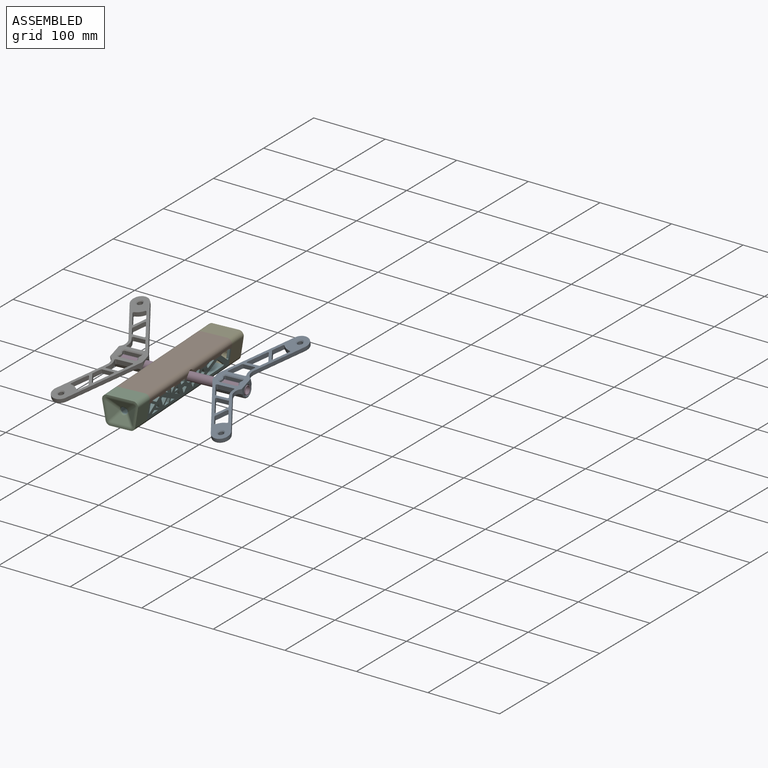
[diagram: assembled view]
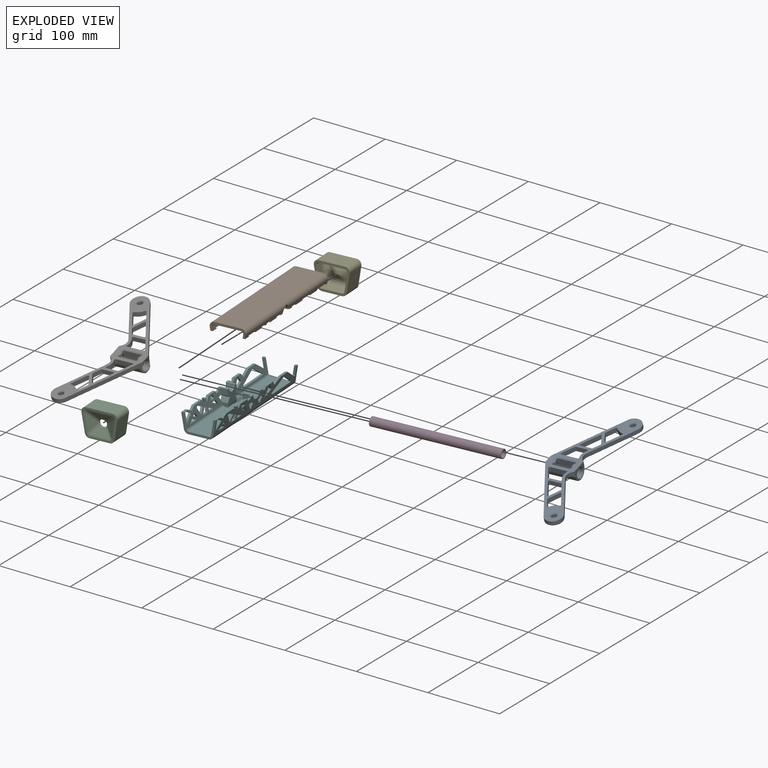
[diagram: exploded view]
GUIDED TOUR — MATED ASSEMBLY (Onshape document f128013b0bb9488676494e75, AutoMate assembly f128013b0bb9488676494e75_38c67e1a10a364d6b3b37d11_ba5783b4f25d2360176f25b1_default)

This assembly has 7 components, labeled P0..P6 below (a component is one placed occurrence of a part; the same part can appear more than once), held together by 8 mates. A mate is a constraint between two components; its type names the relative motion it leaves free:
  CYLINDRICAL — leaves both rotation about and translation along the listed axis free,
  FASTENED — locks the two components together rigidly (no relative motion),
  PLANAR — leaves sliding in the plane through the listed point (normal = the listed direction) and rotation about that normal free.
Axis/direction vectors are unit vectors and 'through' points are millimeter coordinates, both in the assembly's world frame.

MATES
  1. CYLINDRICAL "Cylindrical 1": P3 <-> P5, axis (-0.998, -0.053, -0.014) through (12.97, -10.44, 122.37) mm
  2. PLANAR "Planar 2": P1 <-> P2, direction (0.053, -0.999, 0.000) through (27.02, -98.71, 127.86) mm
  3. PLANAR "Planar 1": P2 <-> P5, direction (-0.053, 0.999, 0.000) through (23.84, -98.88, 131.51) mm
  4. FASTENED "Fastened 3": P6 <-> P3, direction (-0.998, -0.053, -0.014) through (-75.80, -15.17, 121.11) mm
  5. FASTENED "Fastened 2": P1 <-> P2, direction (0.053, -0.999, 0.000) through (23.79, -98.88, 134.69) mm
  6. FASTENED "Fastened 1": P2 <-> P5, direction (-0.053, 0.999, 0.000) through (-11.92, -100.79, 131.00) mm
  7. FASTENED "Fastened 4": P4 <-> P5, direction (0.053, -0.999, 0.000) through (-21.43, 76.76, 134.11) mm
  8. FASTENED "Fastened 5": P0 <-> P3, direction (0.998, 0.053, 0.014) through (101.73, -5.70, 123.64) mm

ASSEMBLY ORDER
  1. P6 — the base component [order verified]
  2. P5 [order verified]
  3. P3 [order verified]
  4. P0 [order verified]
  5. P1 [order verified]
  6. P2 [order verified]
  7. P4 [order verified]
Order-tag legend:
  [order verified] — this step's position reverses a verified removal order: the component was checked to insert without passing through the ones already placed.

Of the 7 components, 0 carry the full construction recipe — the FeatureScript program that regenerates the part's solid from scratch; the rest are supplied as boundary geometry only.
Each toured component is shown spotlighted twice — in the assembled view, then in the exploded view, where a leader line traces a displaced component back to its assembled socket (saturated green if recipe-attached, orange if geometry-only; every other component desaturated gray) — followed by its recipe or geometry summary and the mates that hold it.
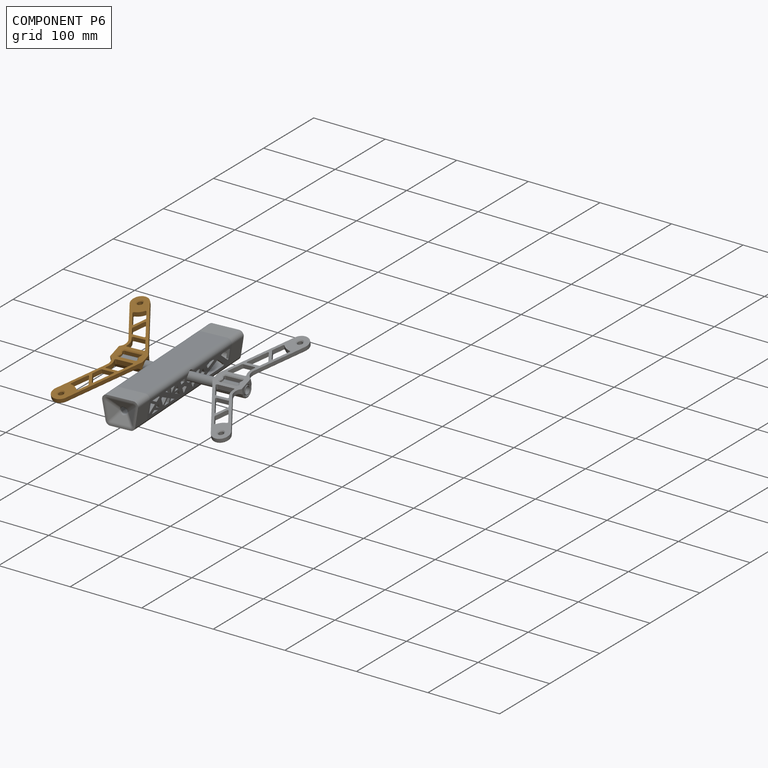
[diagram: component P6 — assembled]
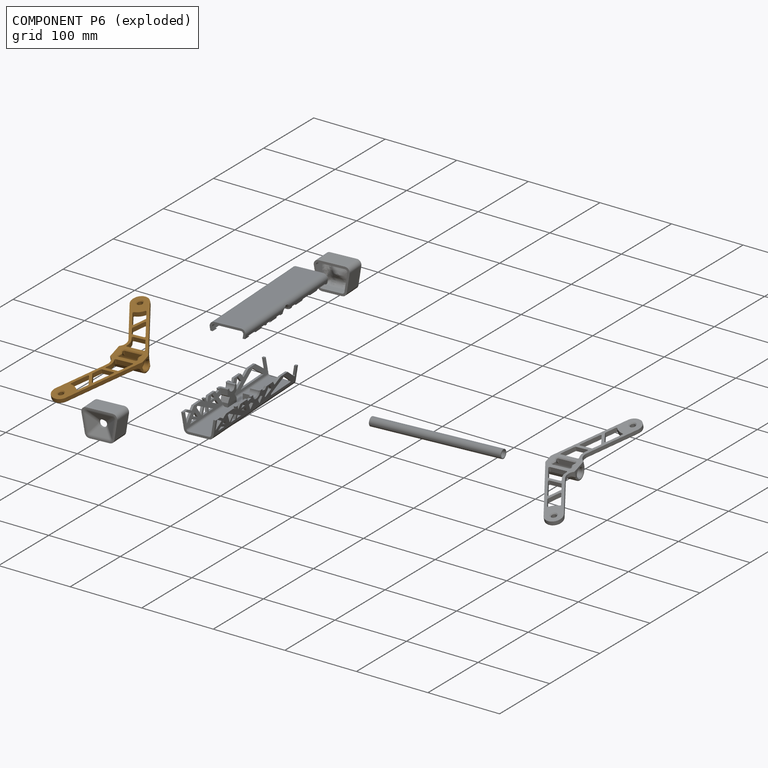
[diagram: component P6 — exploded]
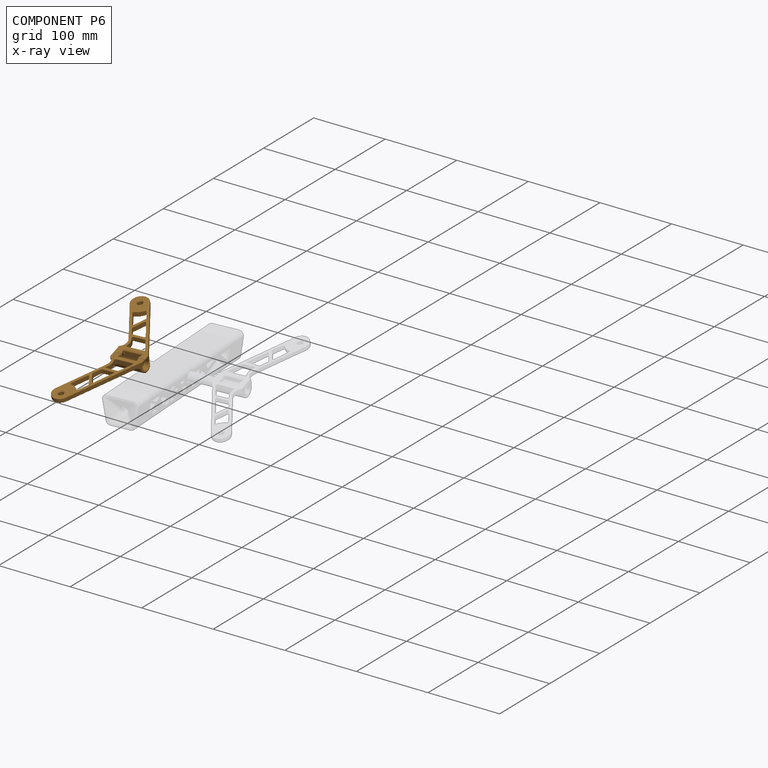
[diagram: component P6 — x-ray view]
COMPONENT P6 — geometry summary (no construction recipe available for this part):
  bounding box: 203.5 x 73.9 x 20.0 mm
  B-rep topology: 1 solid, 135 faces, 724 edges
  volume: 24673 mm^3 (8% of its bounding box)
  symmetry: mirror-symmetric across its y mid-plane
Held by: FASTENED mate "Fastened 3" to P3.
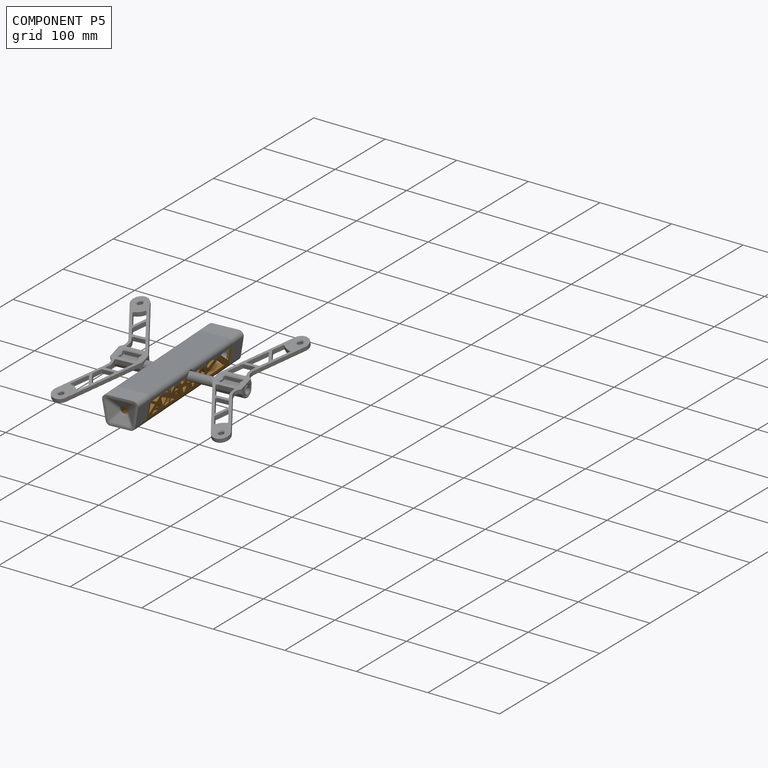
[diagram: component P5 — assembled]
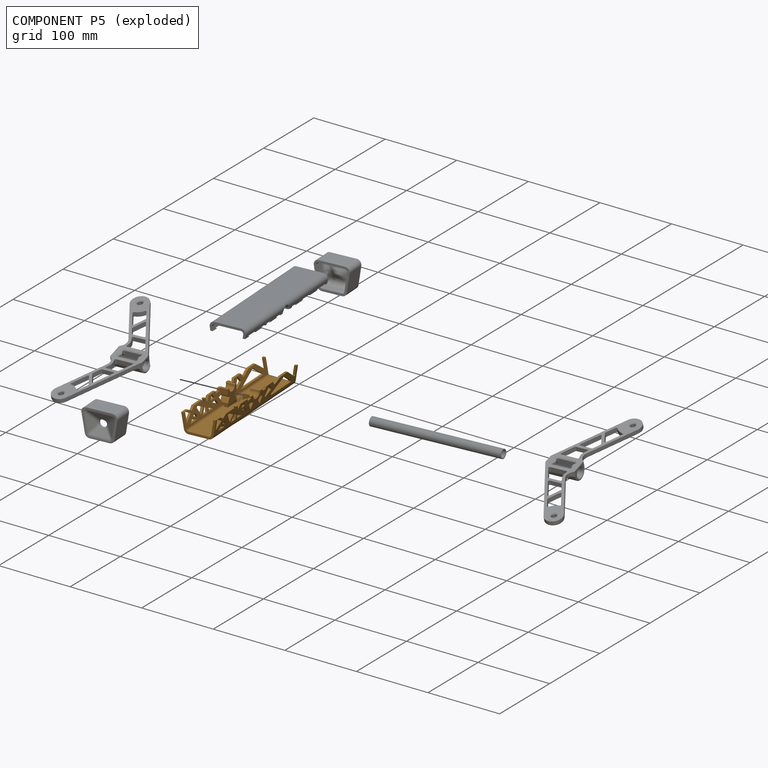
[diagram: component P5 — exploded]
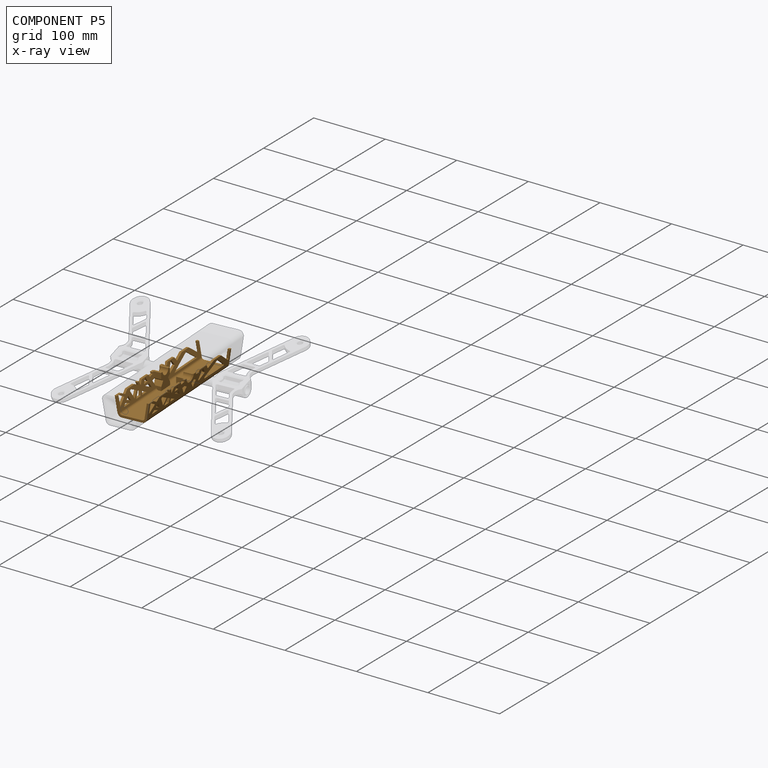
[diagram: component P5 — x-ray view]
COMPONENT P5 — geometry summary (no construction recipe available for this part):
  bounding box: 177.9 x 47.2 x 27.2 mm
  B-rep topology: 1 solid, 180 faces, 1096 edges
  volume: 43722 mm^3 (19% of its bounding box)
Held by: CYLINDRICAL mate "Cylindrical 1" to P3; PLANAR mate "Planar 1" to P2; FASTENED mate "Fastened 1" to P2; FASTENED mate "Fastened 4" to P4.
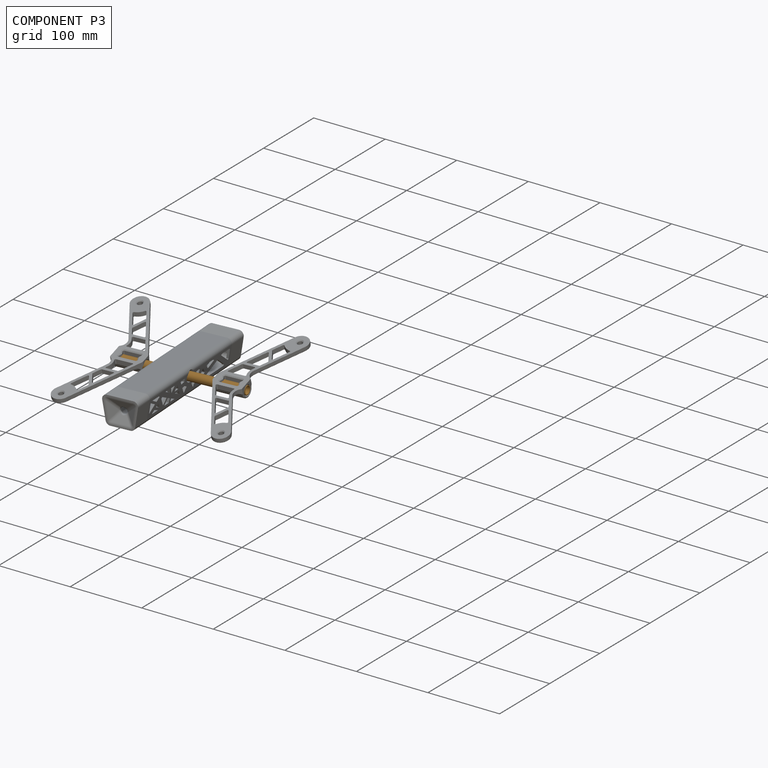
[diagram: component P3 — assembled]
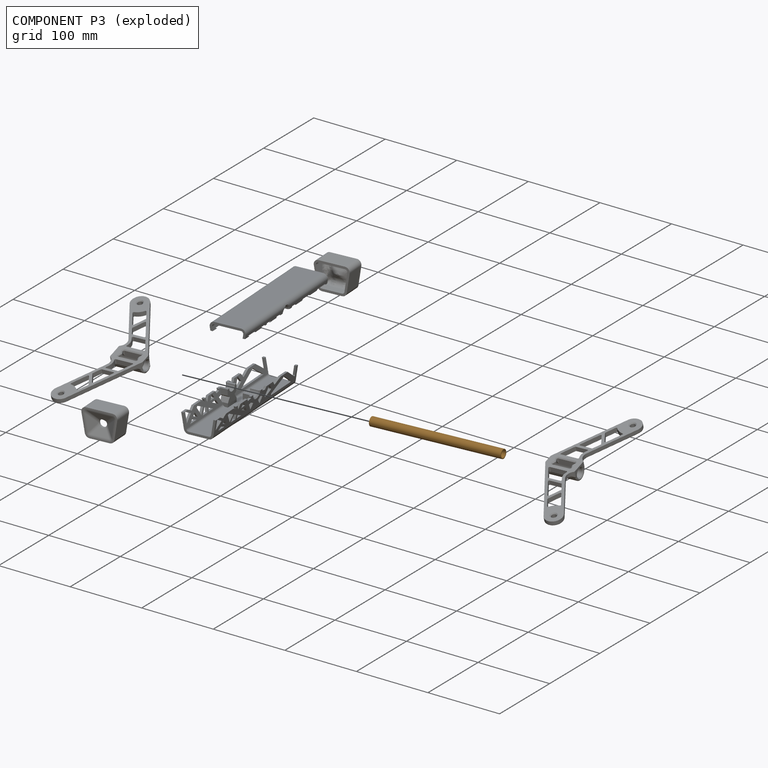
[diagram: component P3 — exploded]
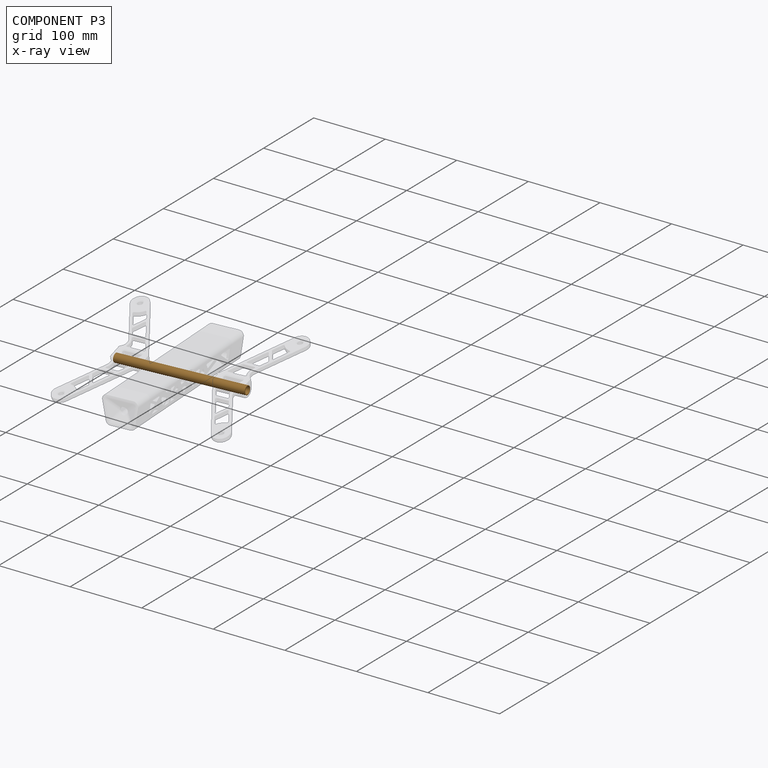
[diagram: component P3 — x-ray view]
COMPONENT P3 — geometry summary (no construction recipe available for this part):
  bounding box: 177.8 x 12.1 x 12.1 mm
  B-rep topology: 1 solid, 7 faces, 42 edges
  volume: 6205 mm^3 (24% of its bounding box)
  symmetry: mirror-symmetric across its x mid-plane
Held by: CYLINDRICAL mate "Cylindrical 1" to P5; FASTENED mate "Fastened 3" to P6; FASTENED mate "Fastened 5" to P0.
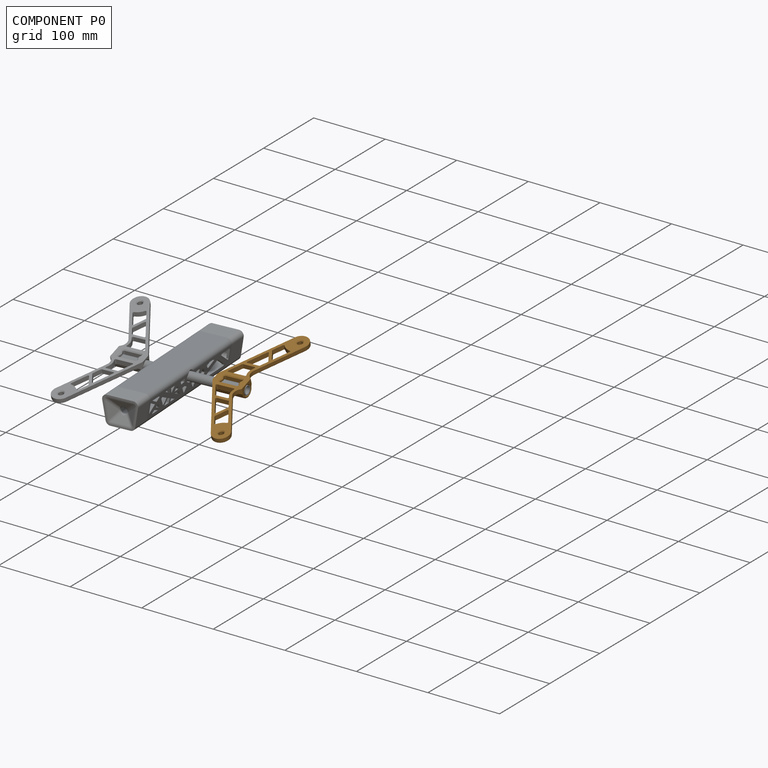
[diagram: component P0 — assembled]
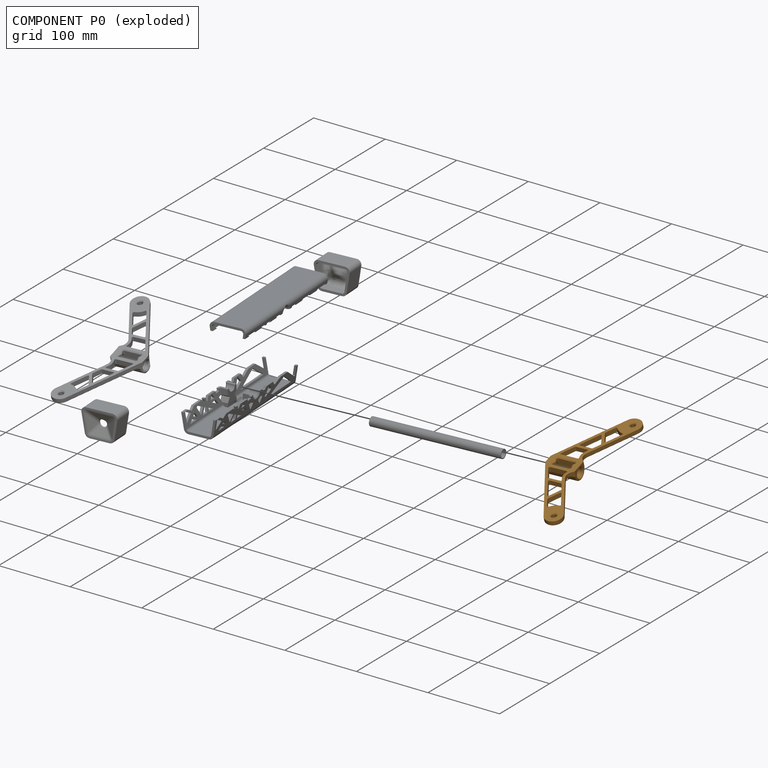
[diagram: component P0 — exploded]
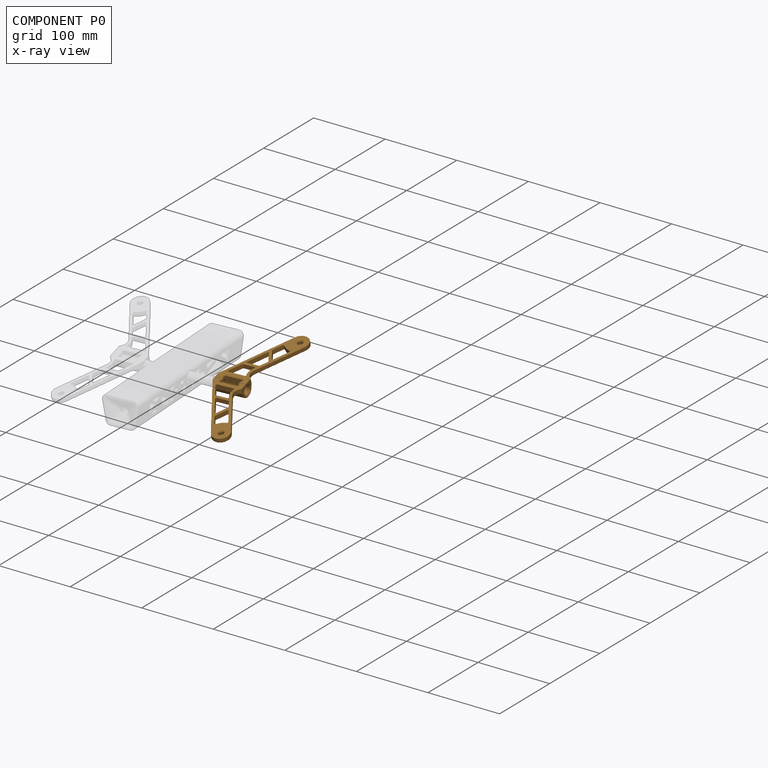
[diagram: component P0 — x-ray view]
COMPONENT P0 — geometry summary (no construction recipe available for this part):
  bounding box: 203.5 x 73.9 x 20.0 mm
  B-rep topology: 1 solid, 135 faces, 724 edges
  volume: 24671 mm^3 (8% of its bounding box)
  symmetry: mirror-symmetric across its y mid-plane
Held by: FASTENED mate "Fastened 5" to P3.
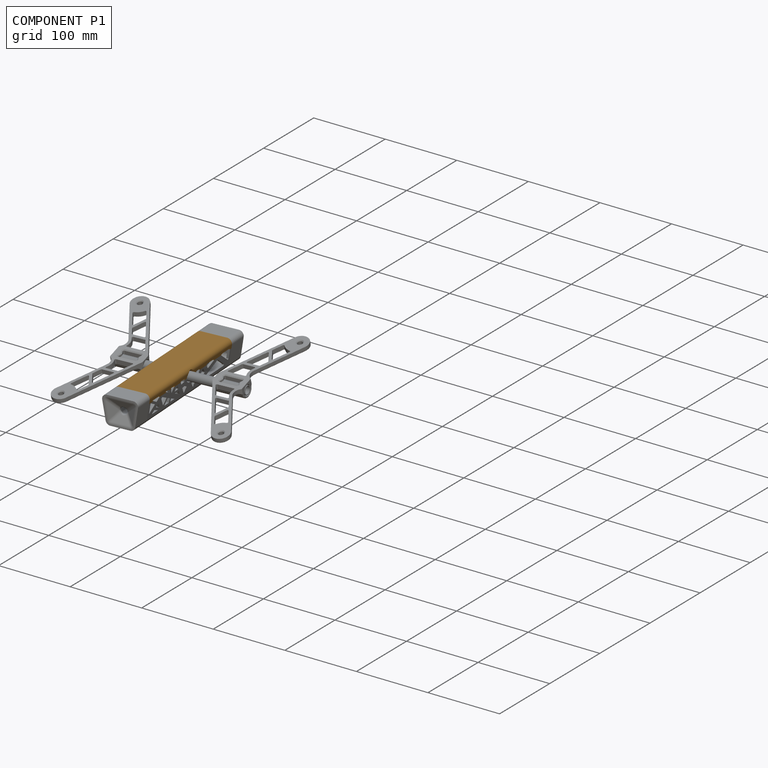
[diagram: component P1 — assembled]
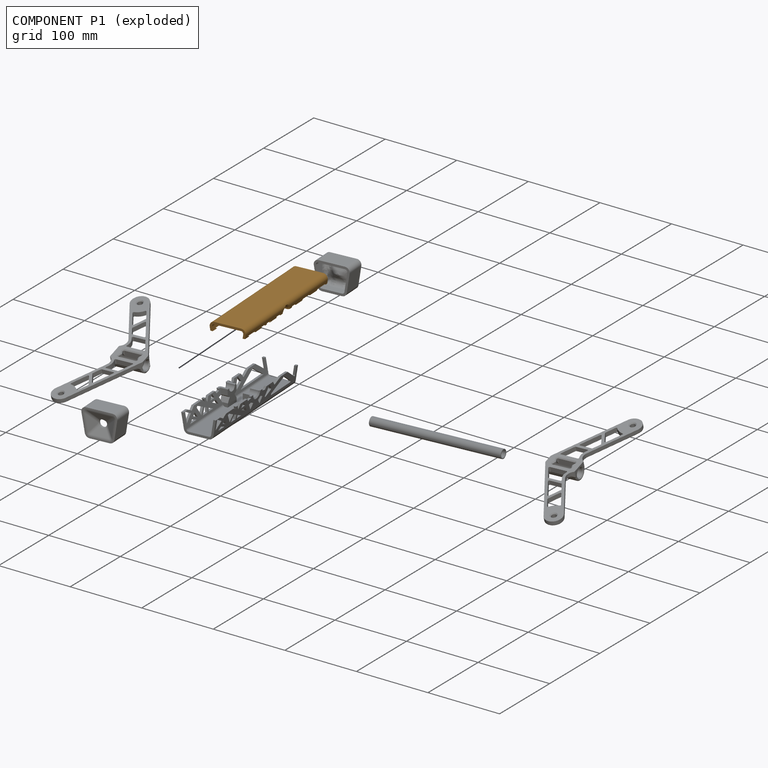
[diagram: component P1 — exploded]
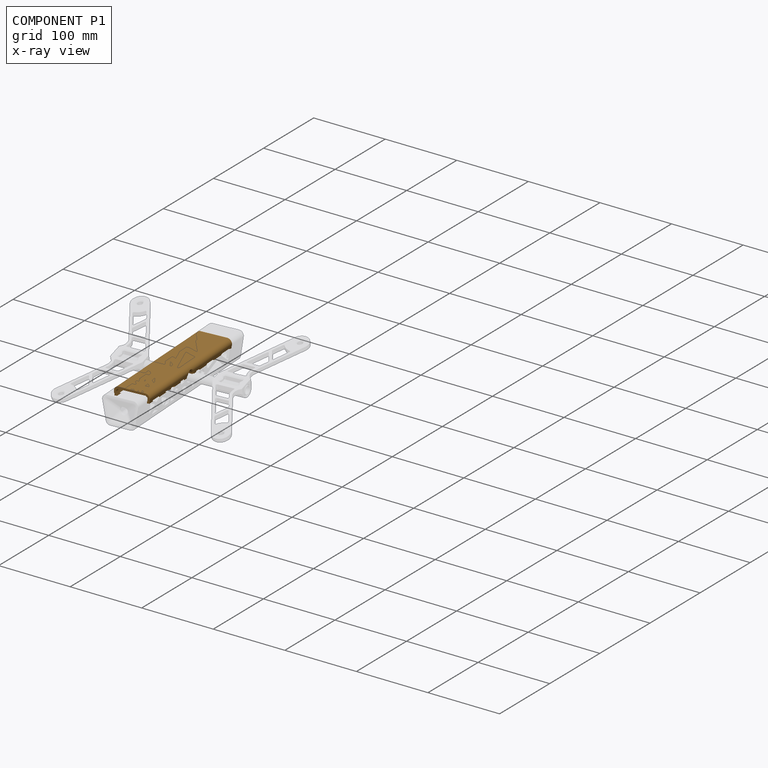
[diagram: component P1 — x-ray view]
COMPONENT P1 — geometry summary (no construction recipe available for this part):
  bounding box: 177.9 x 48.8 x 12.5 mm
  B-rep topology: 1 solid, 99 faces, 574 edges
  volume: 36420 mm^3 (33% of its bounding box)
  symmetry: mirror-symmetric across its x mid-plane
Held by: PLANAR mate "Planar 2" to P2; FASTENED mate "Fastened 2" to P2.
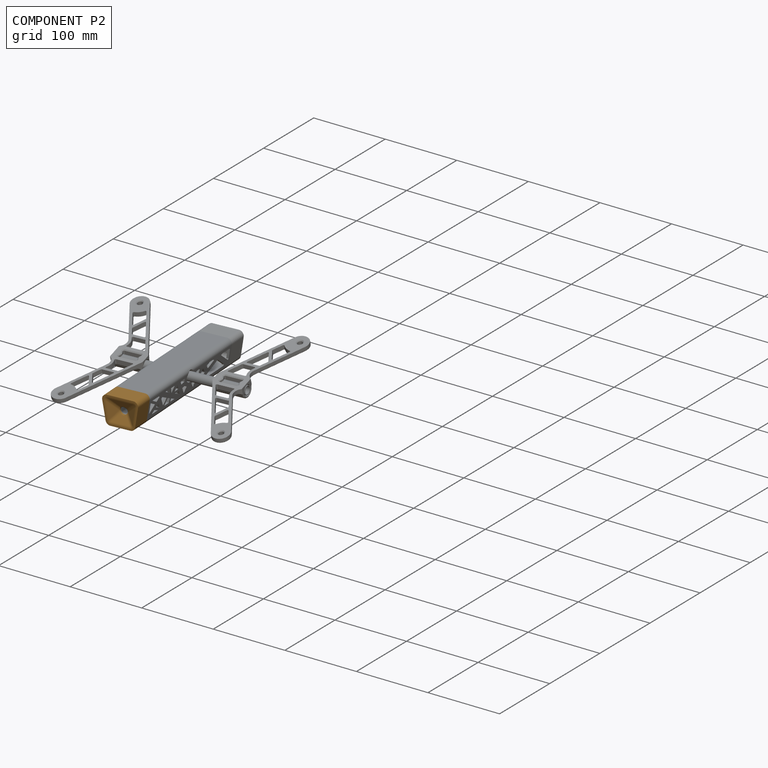
[diagram: component P2 — assembled]
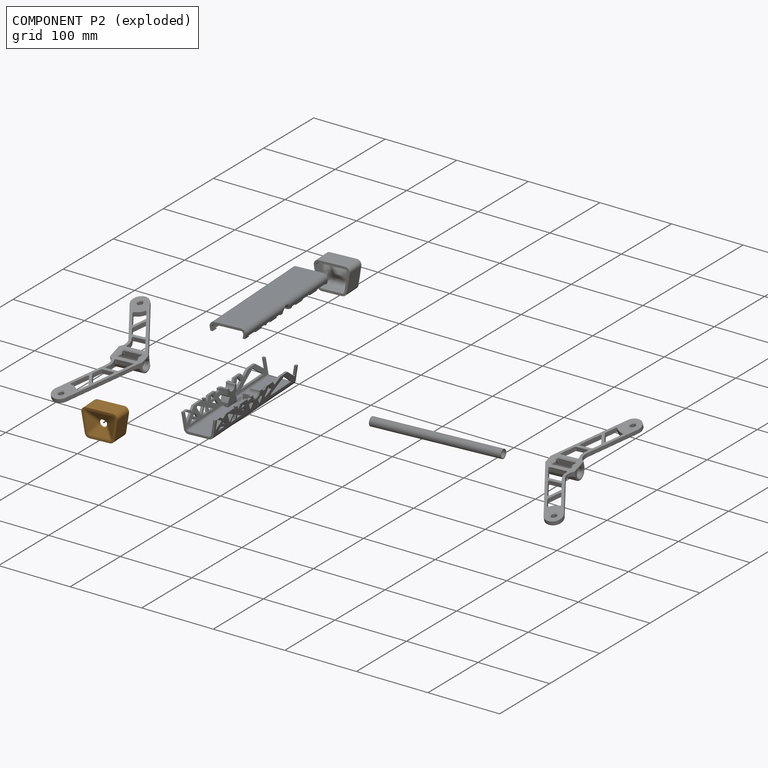
[diagram: component P2 — exploded]
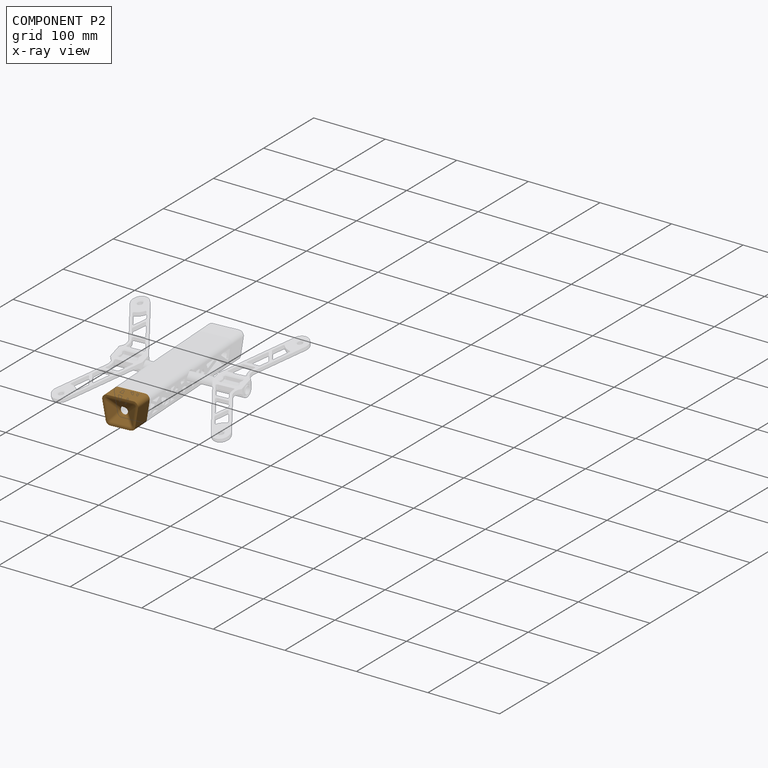
[diagram: component P2 — x-ray view]
COMPONENT P2 — geometry summary (no construction recipe available for this part):
  bounding box: 48.5 x 38.1 x 25.4 mm
  B-rep topology: 1 solid, 60 faces, 290 edges
  volume: 18518 mm^3 (39% of its bounding box)
  symmetry: mirror-symmetric across its x mid-plane
Held by: PLANAR mate "Planar 2" to P1; PLANAR mate "Planar 1" to P5; FASTENED mate "Fastened 2" to P1; FASTENED mate "Fastened 1" to P5.
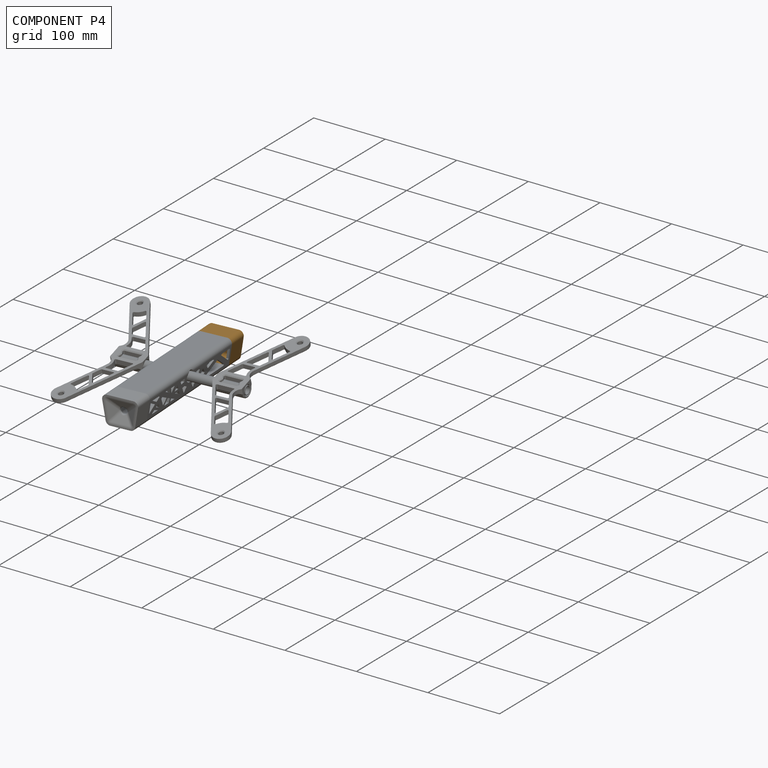
[diagram: component P4 — assembled]
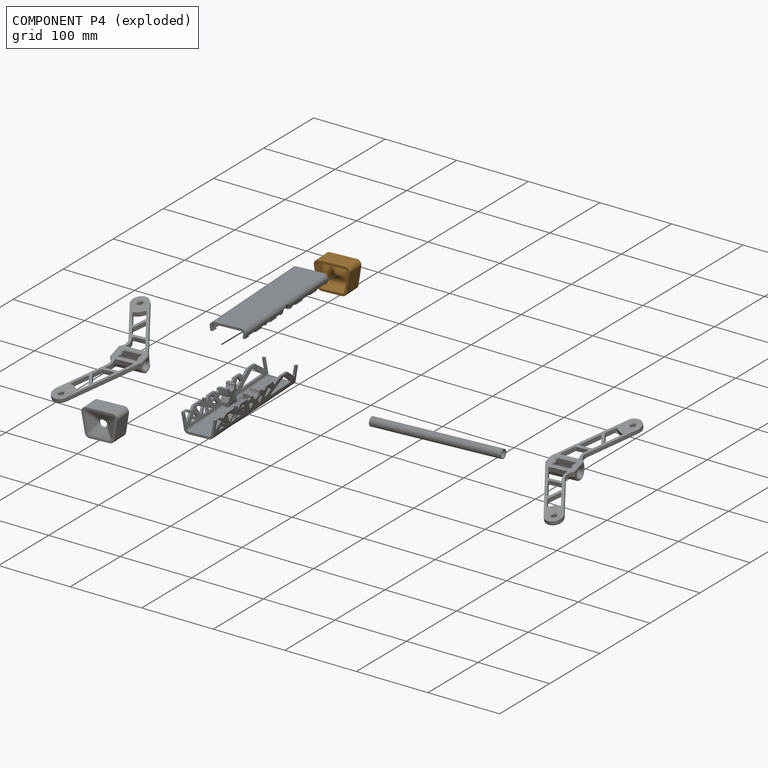
[diagram: component P4 — exploded]
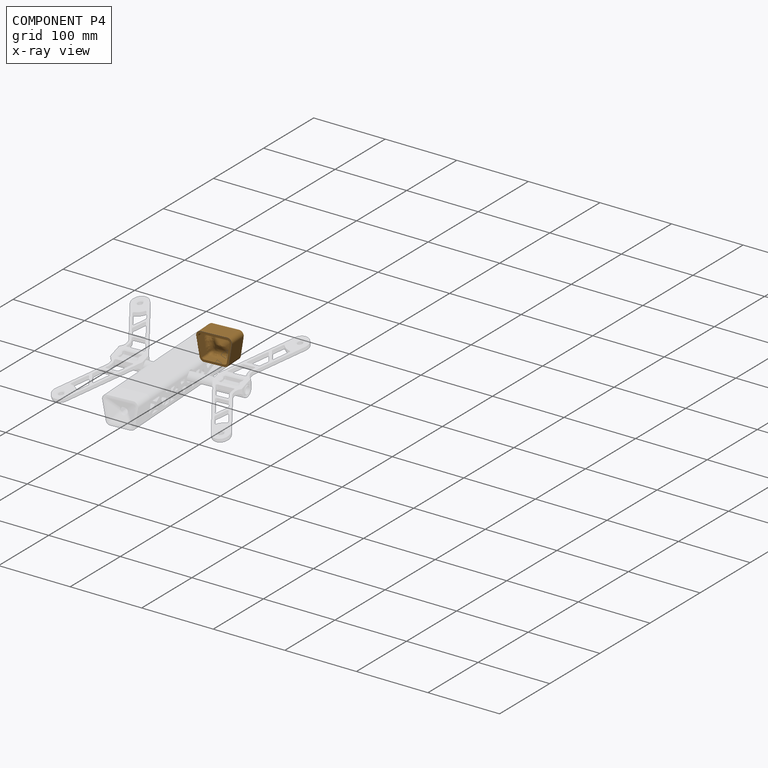
[diagram: component P4 — x-ray view]
COMPONENT P4 — geometry summary (no construction recipe available for this part):
  bounding box: 48.9 x 38.5 x 25.8 mm
  B-rep topology: 1 solid, 60 faces, 284 edges
  volume: 18892 mm^3 (39% of its bounding box)
  symmetry: mirror-symmetric across its x mid-plane
Held by: FASTENED mate "Fastened 4" to P5.
PROVENANCE & LICENSES
Assembly (occurrences, transforms, mates, per-part STEP geometry): AutoMate dataset, Zenodo record 7776208, CC0.
Construction recipes: CADFS (HuggingFace VladPyatov/CADFS, CC-BY-4.0, layered over the ABC dataset), FeatureScript reconstruction programs keyed by ABC model id.
Join: ABC meta listings map ABC model id -> Onshape documentId; within a shared document, parts are matched by geometric signature (bounding-box dims + volume at 0.1% relative tolerance, exact B-rep face/solid counts).
Verification: no recipe attachments in this assembly (7 components, all geometry-only).
Renders: orthographic iso camera (az 35 / el 25); the floor grid conveys scale (grid pitch printed in each image; no ruler). In the exploded view each component is displaced by its stored offset vector: the offsets alone carry the explosion direction (mate normal/axis signs are not orientation cues and do not encode it), and separation distances are assigned per mate-chain, not proportionally to assembly-order depth.
